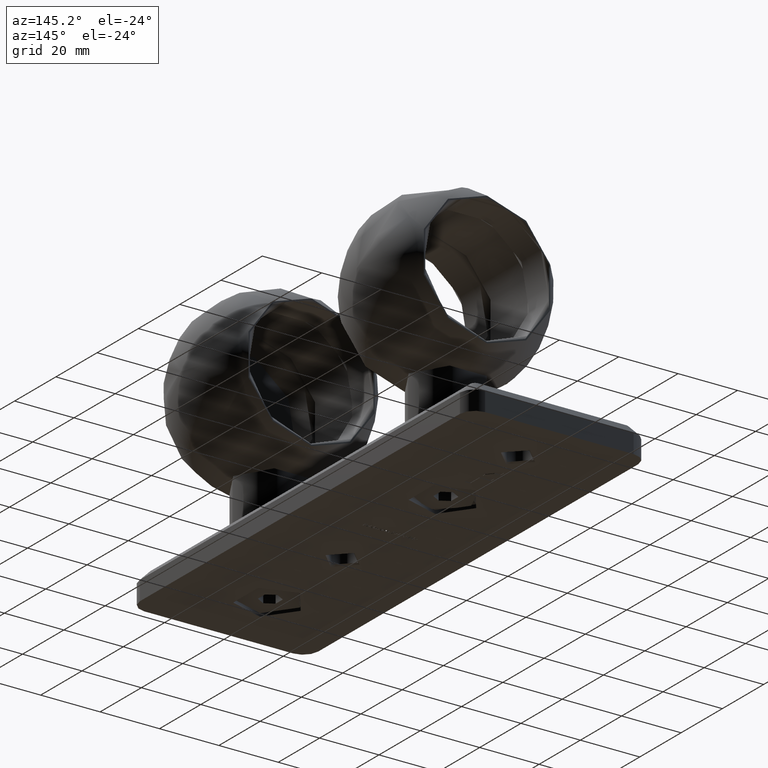
[diagram: clean part render]
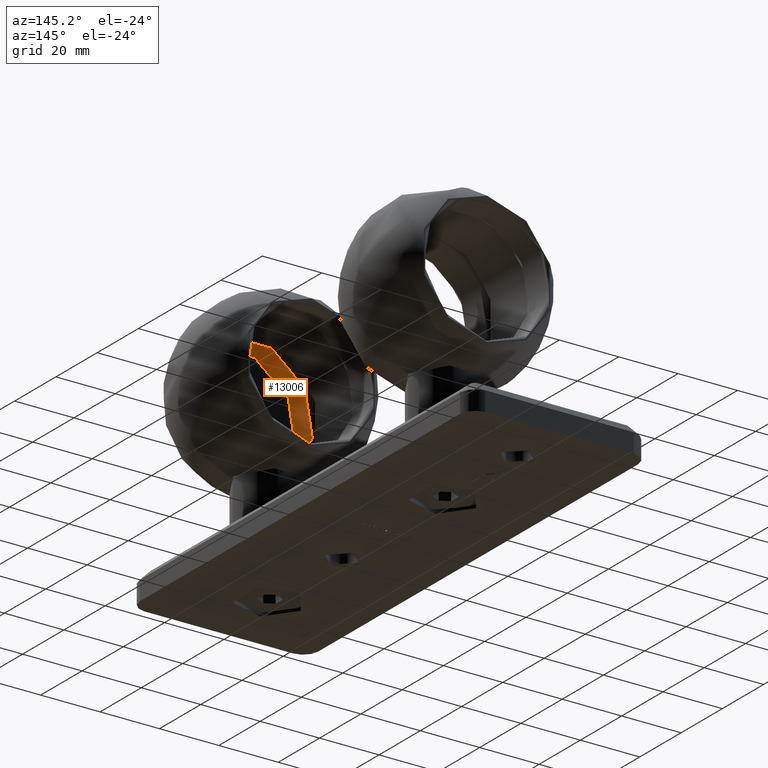
[diagram: same view with one face highlighted and labeled with its STEP entity id]
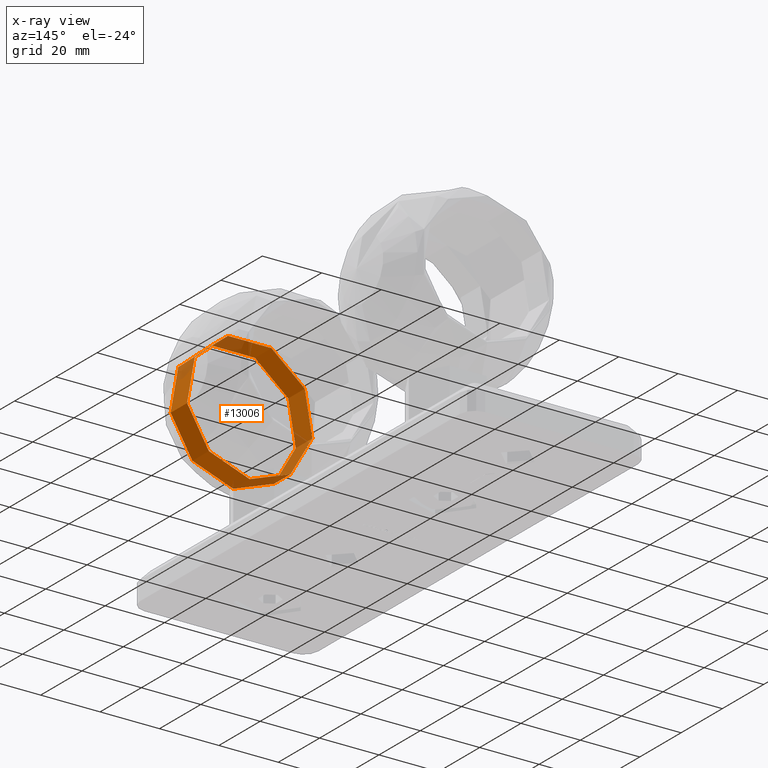
[diagram: x-ray of the same camera — body ghosted, the highlighted face saturated]
A machine part, auxiliary view. The second image highlights one B-rep face of the part: STEP entity #13006.
The next image is the same camera in x-ray: the body ghosted, the highlighted face saturated — about 26% of this face is hidden behind the body in this view.
In plain terms, the highlighted cylindrical surface (bore or boss wall) has radius 21.4 mm, axis along (-0, 1, 0).
Its self-contained STEP definition (entity closure, byte-faithful):
#1177 = CIRCLE ( 'NONE', #8782, 21.39999999999999900 ) ;
#1528 = VERTEX_POINT ( 'NONE', #10608 ) ;
#4532 = CARTESIAN_POINT ( 'NONE',  ( -7.405515359145772200E-031, -21.39999999999999900, -17.99999999999999300 ) ) ;
#4633 = VERTEX_POINT ( 'NONE', #4532 ) ;
#6543 = DIRECTION ( 'NONE',  ( -3.460521195862510700E-032, -1.000000000000000000, 1.621236893436268600E-016 ) ) ;
#6629 = DIRECTION ( 'NONE',  ( 7.016262165877802500E-050, 1.224646799147347300E-016, 1.000000000000000000 ) ) ;
#6632 = CARTESIAN_POINT ( 'NONE',  ( 0.0000000000000000000, 0.0000000000000000000, -9.999999999999987600 ) ) ;
#7182 = FACE_OUTER_BOUND ( 'NONE', #16307, .T. ) ;
#8782 = AXIS2_PLACEMENT_3D ( 'NONE', #15799, #6629, #17337 ) ;
#10608 = CARTESIAN_POINT ( 'NONE',  ( -7.405515359145770500E-031, -21.39999999999999100, -9.999999999999984000 ) ) ;
#11284 = ORIENTED_EDGE ( 'NONE', *, *, #13834, .F. ) ;
#12467 = EDGE_LOOP ( 'NONE', ( #13673 ) ) ;
#12745 = DIRECTION ( 'NONE',  ( 7.016262165877802500E-050, 1.224646799147347300E-016, 1.000000000000000000 ) ) ;
#13006 = ADVANCED_FACE ( 'NONE', ( #16049, #7182 ), #19166, .F. ) ;
#13673 = ORIENTED_EDGE ( 'NONE', *, *, #16297, .T. ) ;
#13834 = EDGE_CURVE ( 'NONE', #4633, #4633, #1177, .T. ) ;
#14162 = AXIS2_PLACEMENT_3D ( 'NONE', #6632, #14300, #14439 ) ;
#14300 = DIRECTION ( 'NONE',  ( 7.016262165877802500E-050, 1.224646799147347300E-016, 1.000000000000000000 ) ) ;
#14439 = DIRECTION ( 'NONE',  ( -3.460521195862510700E-032, -1.000000000000000000, 1.621236893436268900E-016 ) ) ;
#15722 = CARTESIAN_POINT ( 'NONE',  ( 3.081487911019577400E-030, 0.0000000000000000000, -18.00000000000001100 ) ) ;
#15799 = CARTESIAN_POINT ( 'NONE',  ( 0.0000000000000000000, 0.0000000000000000000, -17.99999999999999600 ) ) ;
#16049 = FACE_OUTER_BOUND ( 'NONE', #12467, .T. ) ;
#16297 = EDGE_CURVE ( 'NONE', #1528, #1528, #18147, .T. ) ;
#16307 = EDGE_LOOP ( 'NONE', ( #11284 ) ) ;
#17337 = DIRECTION ( 'NONE',  ( -3.460521195862510700E-032, -1.000000000000000000, 1.621236893436268400E-016 ) ) ;
#17868 = AXIS2_PLACEMENT_3D ( 'NONE', #15722, #12745, #6543 ) ;
#18147 = CIRCLE ( 'NONE', #14162, 21.39999999999999100 ) ;
#19166 = CYLINDRICAL_SURFACE ( 'NONE', #17868, 21.39999999999999500 ) ;